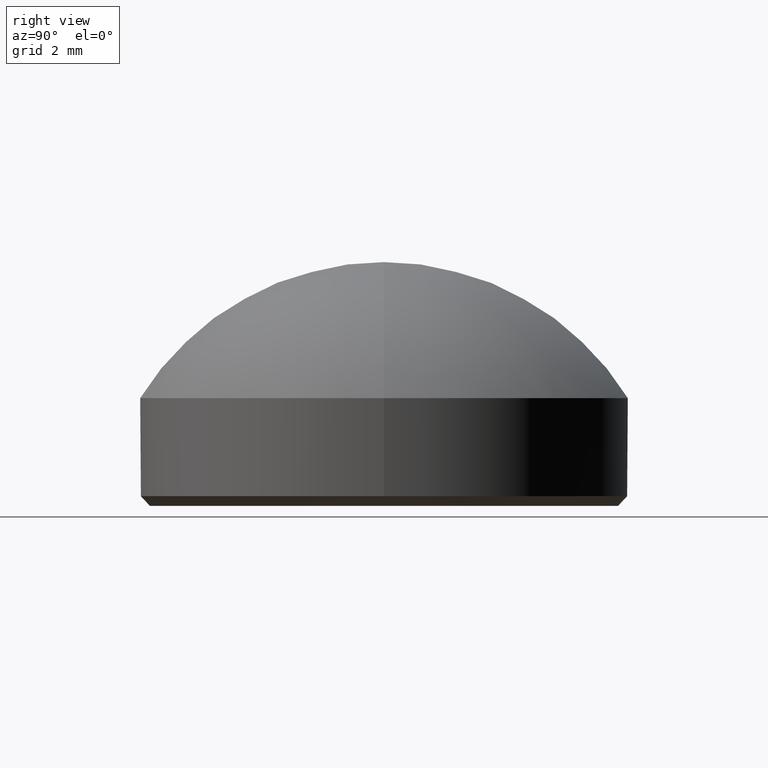
[diagram: clean part render]
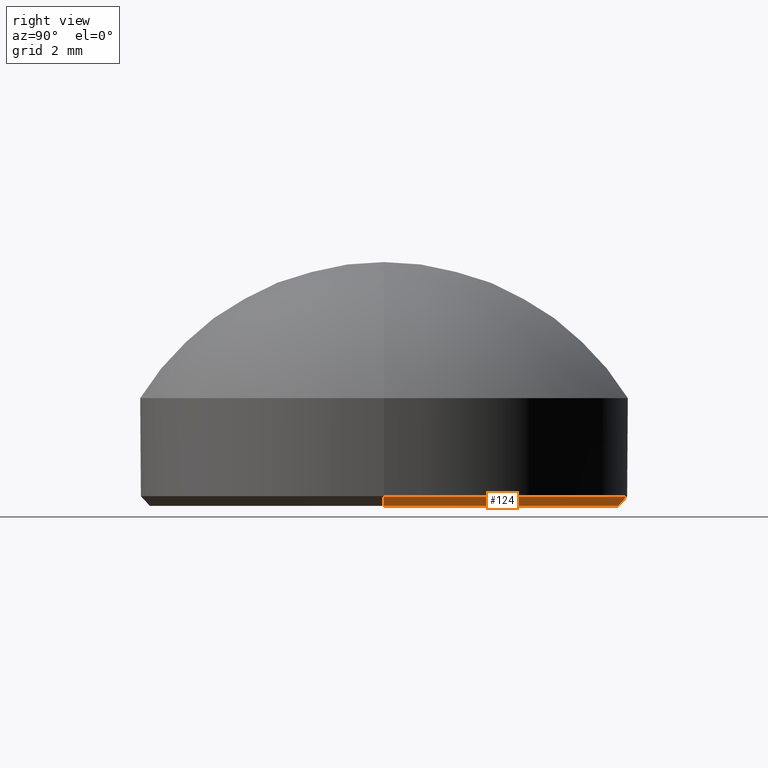
[diagram: same view with one face highlighted and labeled with its STEP entity id]
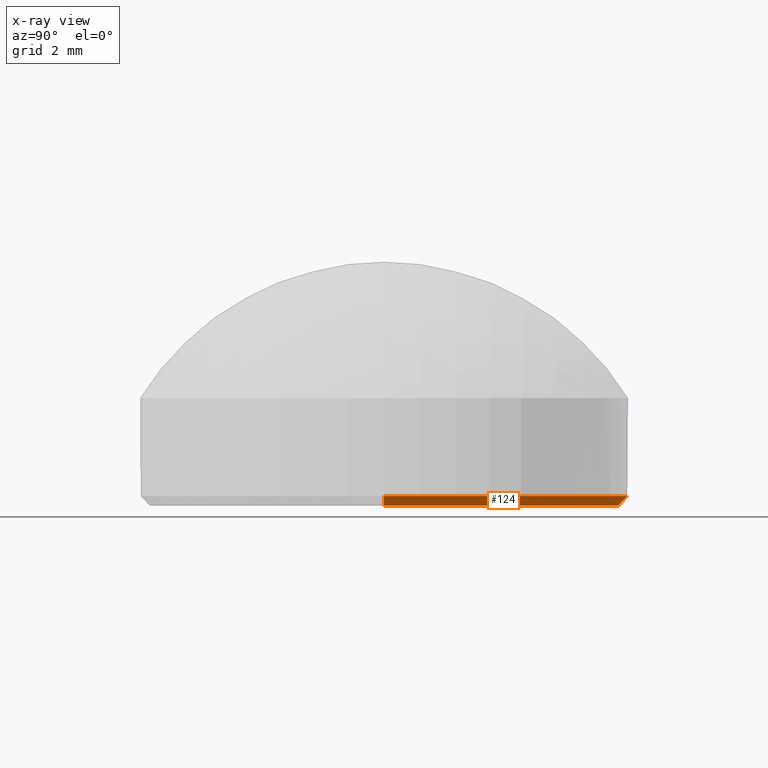
[diagram: x-ray of the same camera — body ghosted, the highlighted face saturated]
A machine part, right view. The second image highlights one B-rep face of the part: STEP entity #124.
The next image is the same camera in x-ray: the body ghosted, the highlighted face saturated — about 0% of this face is hidden behind the body in this view.
In plain terms, the highlighted conical surface has half-angle 45 deg.
Its self-contained STEP definition (entity closure, byte-faithful):
#2 = AXIS2_PLACEMENT_3D ( 'NONE', #119, #117, #158 ) ;
#11 = CIRCLE ( 'NONE', #62, 5.000000000000000000 ) ;
#12 = DIRECTION ( 'NONE',  ( 1.000000000000000000, 0.000000000000000000, 0.000000000000000000 ) ) ;
#15 = LINE ( 'NONE', #178, #112 ) ;
#22 = ORIENTED_EDGE ( 'NONE', *, *, #93, .F. ) ;
#24 = AXIS2_PLACEMENT_3D ( 'NONE', #174, #161, #145 ) ;
#27 = VERTEX_POINT ( 'NONE', #129 ) ;
#34 = CARTESIAN_POINT ( 'NONE',  ( -4.800000000000000711, 6.000769315822031726E-16, 0.000000000000000000 ) ) ;
#46 = EDGE_LOOP ( 'NONE', ( #188, #111, #115, #22 ) ) ;
#62 = AXIS2_PLACEMENT_3D ( 'NONE', #157, #193, #12 ) ;
#79 = CARTESIAN_POINT ( 'NONE',  ( -5.000000000000000000, 0.000000000000000000, 0.1999999999999987899 ) ) ;
#80 = FACE_OUTER_BOUND ( 'NONE', #46, .T. ) ;
#83 = CARTESIAN_POINT ( 'NONE',  ( 5.000000000000000000, 0.000000000000000000, 0.1999999999999987899 ) ) ;
#91 = VERTEX_POINT ( 'NONE', #134 ) ;
#93 = EDGE_CURVE ( 'NONE', #91, #27, #177, .T. ) ;
#96 = VERTEX_POINT ( 'NONE', #34 ) ;
#105 = DIRECTION ( 'NONE',  ( -0.7071067811865490160, 8.659560562354953812E-17, 0.7071067811865460184 ) ) ;
#106 = VECTOR ( 'NONE', #132, 1000.000000000000114 ) ;
#111 = ORIENTED_EDGE ( 'NONE', *, *, #187, .T. ) ;
#112 = VECTOR ( 'NONE', #105, 1000.000000000000114 ) ;
#115 = ORIENTED_EDGE ( 'NONE', *, *, #130, .F. ) ;
#117 = DIRECTION ( 'NONE',  ( -0.000000000000000000, -0.000000000000000000, -1.000000000000000000 ) ) ;
#119 = CARTESIAN_POINT ( 'NONE',  ( 0.000000000000000000, 0.000000000000000000, 0.000000000000000000 ) ) ;
#124 = ADVANCED_FACE ( 'NONE', ( #80 ), #150, .T. ) ;
#129 = CARTESIAN_POINT ( 'NONE',  ( 5.000000000000000000, 6.123233995736766282E-16, 0.1999999999999987899 ) ) ;
#130 = EDGE_CURVE ( 'NONE', #27, #156, #11, .T. ) ;
#132 = DIRECTION ( 'NONE',  ( 0.7071067811865490160, 0.000000000000000000, 0.7071067811865460184 ) ) ;
#134 = CARTESIAN_POINT ( 'NONE',  ( 4.800000000000000711, 0.000000000000000000, 0.000000000000000000 ) ) ;
#137 = EDGE_CURVE ( 'NONE', #96, #91, #216, .T. ) ;
#145 = DIRECTION ( 'NONE',  ( 1.000000000000000000, 0.000000000000000000, 0.000000000000000000 ) ) ;
#150 = CONICAL_SURFACE ( 'NONE', #24, 5.000000000000000000, 0.7853981633974504994 ) ;
#156 = VERTEX_POINT ( 'NONE', #79 ) ;
#157 = CARTESIAN_POINT ( 'NONE',  ( 0.000000000000000000, 0.000000000000000000, 0.1999999999999987899 ) ) ;
#158 = DIRECTION ( 'NONE',  ( 1.000000000000000000, 0.000000000000000000, 0.000000000000000000 ) ) ;
#161 = DIRECTION ( 'NONE',  ( -0.000000000000000000, -0.000000000000000000, 1.000000000000000000 ) ) ;
#174 = CARTESIAN_POINT ( 'NONE',  ( 0.000000000000000000, 0.000000000000000000, 0.1999999999999987899 ) ) ;
#177 = LINE ( 'NONE', #83, #106 ) ;
#178 = CARTESIAN_POINT ( 'NONE',  ( -5.000000000000000000, 6.123233995736766282E-16, 0.1999999999999987899 ) ) ;
#187 = EDGE_CURVE ( 'NONE', #96, #156, #15, .T. ) ;
#188 = ORIENTED_EDGE ( 'NONE', *, *, #137, .F. ) ;
#193 = DIRECTION ( 'NONE',  ( -0.000000000000000000, -0.000000000000000000, 1.000000000000000000 ) ) ;
#216 = CIRCLE ( 'NONE', #2, 4.800000000000000711 ) ;